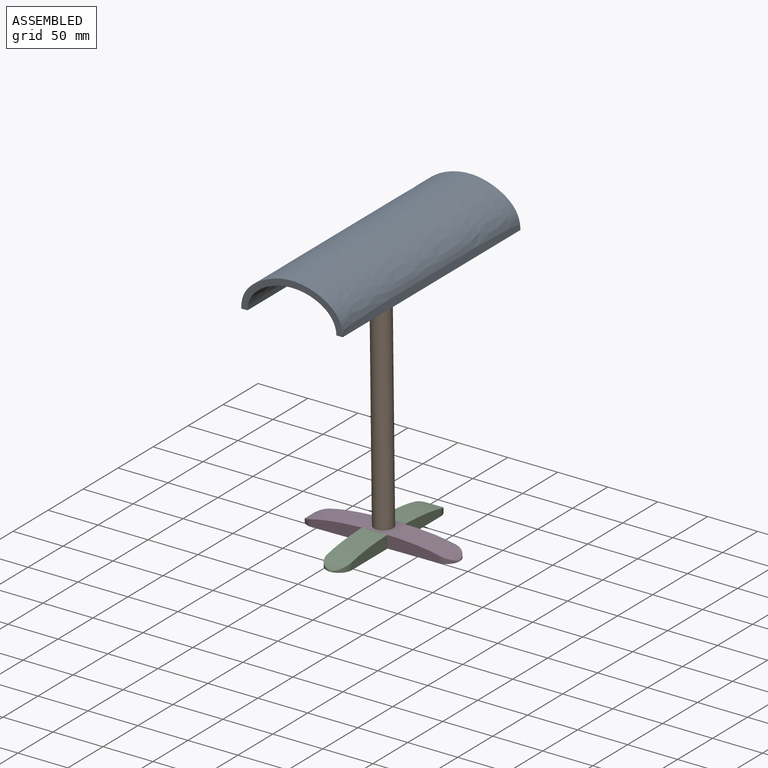
[diagram: assembled view]
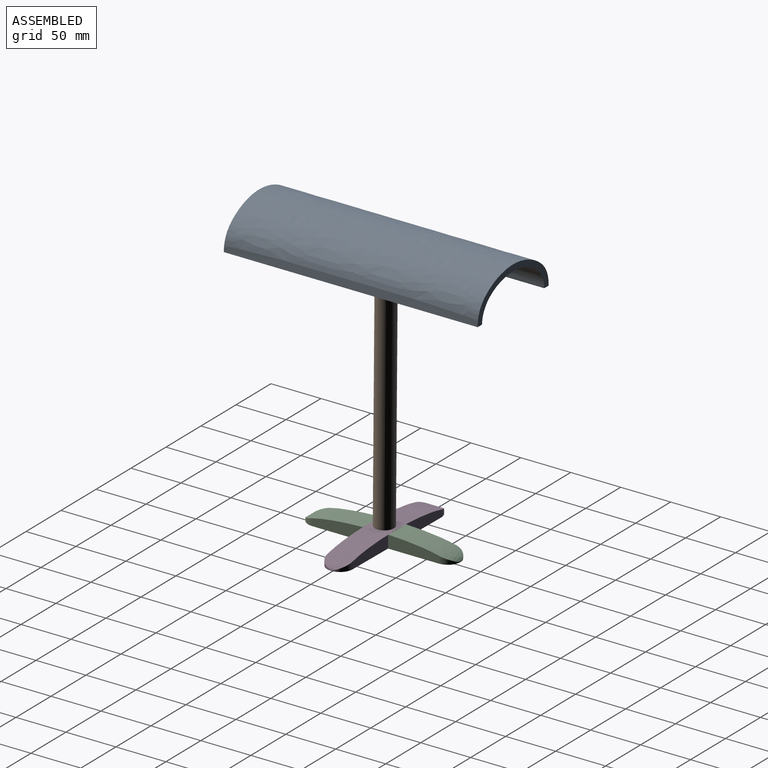
[diagram: assembled view, second angle]
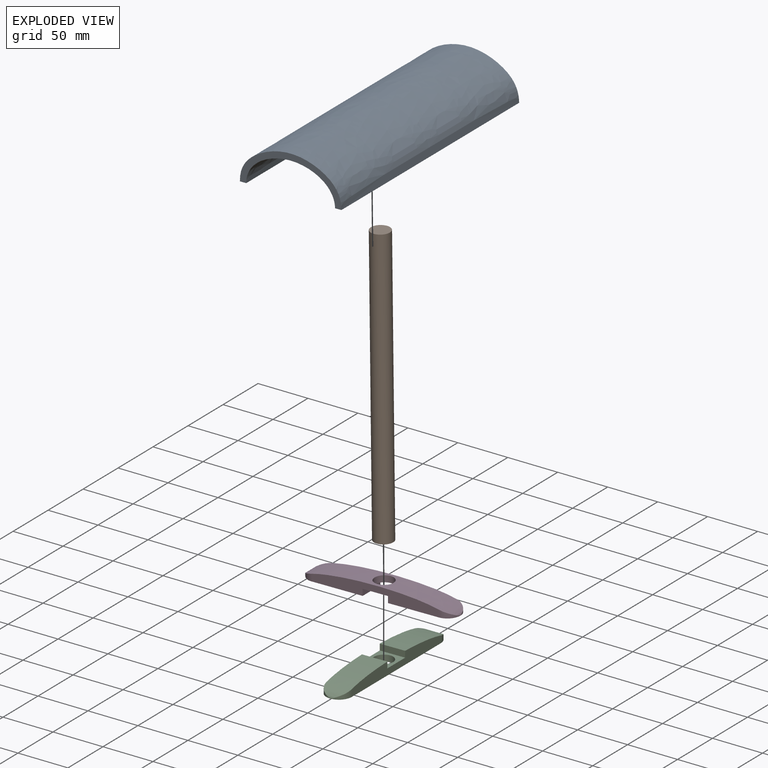
[diagram: exploded view]
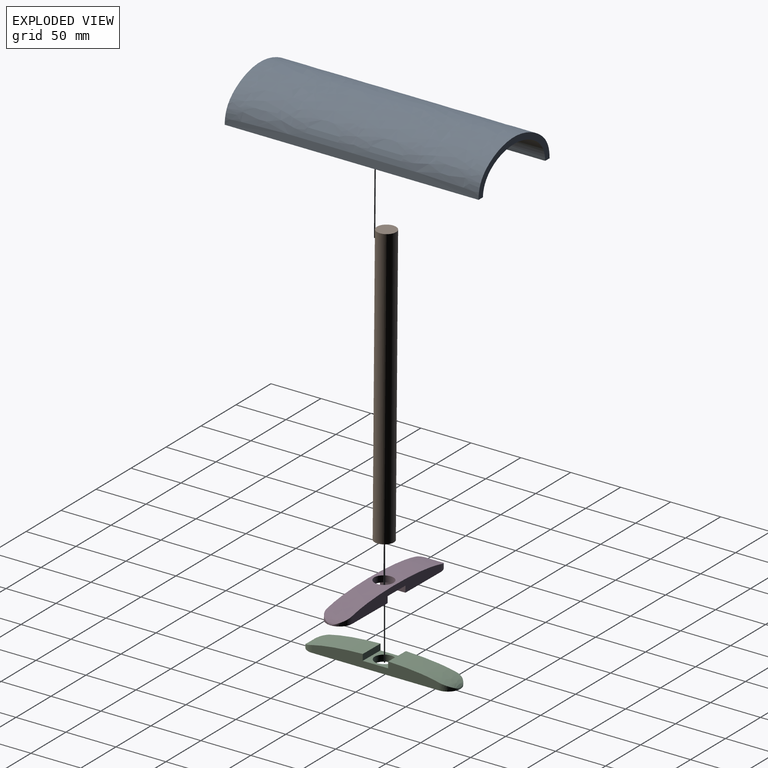
[diagram: exploded view, second angle]
ASSEMBLY  parts=4 mates=3
PART A: 8 faces, bbox 101.6x254x38.8 mm
  f0: extruded ~254x88.9mm, area 30349mm2, adj f1,f2,f4,f5,f6
  f1: plane 254x6.35mm, normal (0,0,-1), area 1612.9mm2, adj f0,f3,f4,f5
  f2: plane 254x6.35mm, normal (0,0,-1), area 1612.9mm2, adj f0,f3,f4,f5
  f3: extruded ~254x101.6mm, area 35756.8mm2, adj f1,f2,f4,f5
  f4: plane 101.6x38.8mm, normal (0,-1,0), area 831.7mm2, adj f0,f1,f2,f3
  f5: plane 101.6x38.8mm, normal (0,1,0), area 831.7mm2, adj f0,f1,f2,f3
  f6: cylinder r=9.53mm len=19.05mm, axis (0,0,-1), area 251.2mm2, adj f0,f7
  f7: plane 19.05x19.05mm, normal (0,0,-1), area 285mm2, adj f6
PART B: 3 faces, bbox 19.1x19.1x279.4 mm
  f0: cylinder r=9.53mm len=279.4mm, axis (0,0,-1), area 16721.3mm2, adj f1,f2
  f1: plane 19.05x19.05mm, normal (0,0,1), area 285mm2, adj f0
  f2: plane 19.05x19.05mm, normal (0,0,-1), area 285mm2, adj f0
PART C: 13 faces, bbox 25.4x152.4x12.5 mm
  f0: cylinder r=12.7mm len=12.7mm, axis (0,0,-1), area 75.4mm2, adj f2,f4,f12
  f1: cylinder r=12.7mm len=12.7mm, axis (0,0,-1), area 75.4mm2, adj f2,f3,f11
  f2: plane 152.4x25.4mm, normal (0,0,1), area 3447.5mm2, adj f0,f1,f3,f4,f8,f9,f10
  f3: plane 127x12.53mm, normal (-1,0,0), area 1239.6mm2, adj f1,f2,f5,f6,f7,f9,f11,f12
  f4: plane 127x12.53mm, normal (1,0,0), area 1239.6mm2, adj f0,f2,f5,f6,f7,f10,f11,f12
  f5: plane 25.4x6.18mm, normal (0,-1,0), area 156.8mm2, adj f3,f4,f6,f12
  f6: plane 25.4x25.4mm, normal (0,0,-1), area 360.1mm2, adj f3,f4,f5,f7,f8
  f7: plane 25.4x6.18mm, normal (0,1,0), area 156.8mm2, adj f3,f4,f6,f11
  f8: cylinder r=9.53mm len=19.05mm, axis (0,0,-1), area 380mm2, adj f2,f6
  f9: cylinder r=12.7mm len=12.7mm, axis (0,0,-1), area 75.4mm2, adj f2,f3,f12
  f10: cylinder r=12.7mm len=12.7mm, axis (0,0,-1), area 75.4mm2, adj f2,f4,f11
  f11: extruded ~63.5x25.4mm, area 1579.2mm2, adj f1,f3,f4,f7,f10
  f12: extruded ~63.5x25.4mm, area 1579.2mm2, adj f0,f3,f4,f5,f9
PART D: 13 faces, bbox 152.4x25.4x12.7 mm
  f0: cylinder r=9.53mm len=19.05mm, axis (0,0,1), area 377.1mm2, adj f11,f12
  f1: cylinder r=12.7mm len=12.7mm, axis (0,0,1), area 75.4mm2, adj f6,f7,f12
  f2: cylinder r=12.7mm len=12.7mm, axis (0,0,1), area 75.4mm2, adj f7,f8,f12
  f3: cylinder r=12.7mm len=12.7mm, axis (0,0,1), area 75.4mm2, adj f5,f8,f12
  f4: cylinder r=12.7mm len=12.7mm, axis (0,0,1), area 75.4mm2, adj f5,f6,f12
  f5: plane 63.5x25.4mm, normal (0,0,1), area 1543.7mm2, adj f3,f4,f6,f8,f9
  f6: plane 127x12.7mm, normal (0,1,0), area 1237.8mm2, adj f1,f4,f5,f7,f9,f10,f11,f12
  f7: plane 63.5x25.4mm, normal (0,0,1), area 1543.7mm2, adj f1,f2,f6,f8,f10
  f8: plane 127x12.7mm, normal (0,-1,0), area 1237.8mm2, adj f2,f3,f5,f7,f9,f10,f11,f12
  f9: plane 25.4x6.35mm, normal (-1,0,0), area 161.3mm2, adj f5,f6,f8,f11
  f10: plane 25.4x6.35mm, normal (1,0,0), area 161.3mm2, adj f6,f7,f8,f11
  f11: plane 25.4x25.4mm, normal (0,0,1), area 360.1mm2, adj f0,f6,f8,f9,f10
  f12: extruded ~152.4x25.4mm, area 3518.6mm2, adj f0,f1,f2,f3,f4,f6,f8
PLACE A rot(axis=(0,-1,0),0.7deg) t=(4.16,-1.57,222.63)mm
PLACE B rot(axis=(0,-1,0),0.7deg) t=(58.31,-50.45,-20.6)mm
PLACE C rot(axis=(0,1,0),179.3deg) t=(19.54,0,-8.35)mm
PLACE D rot(axis=(0,1,0),179.3deg) t=(-110.42,-14.27,-22.56)mm
MATE cylindrical B.f0 <-> C.f8  axis (0.01,0,-1) through (6.99,-1.57,-21.19)mm
MATE cylindrical A.f6 <-> B.f0  axis (0.01,0,-1) through (3.75,-1.57,258.19)mm
MATE cylindrical D.f0 <-> C.f8  axis (0.01,0,-1) through (6.91,-1.57,-14.84)mm
